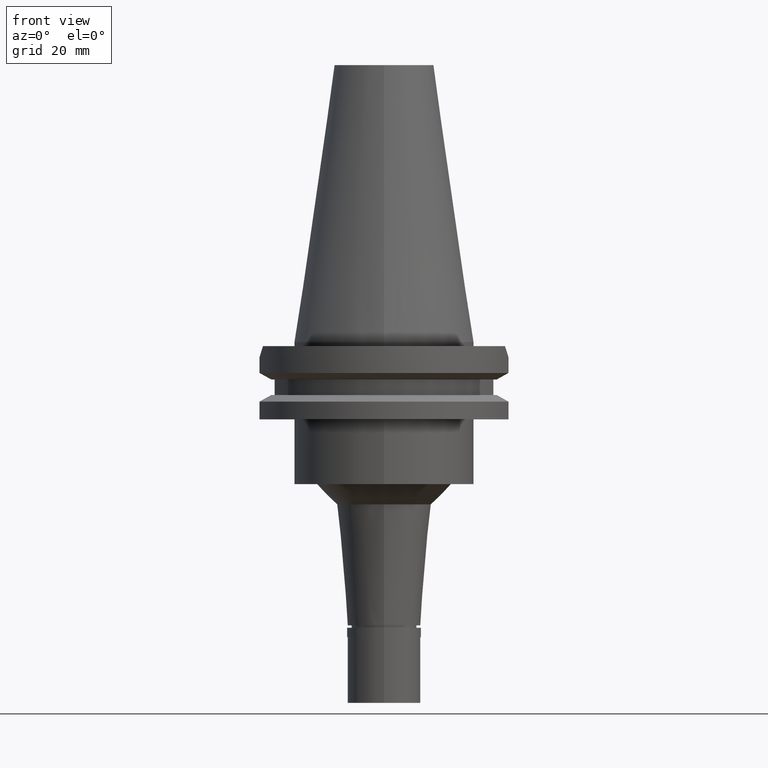
[diagram: clean part render]
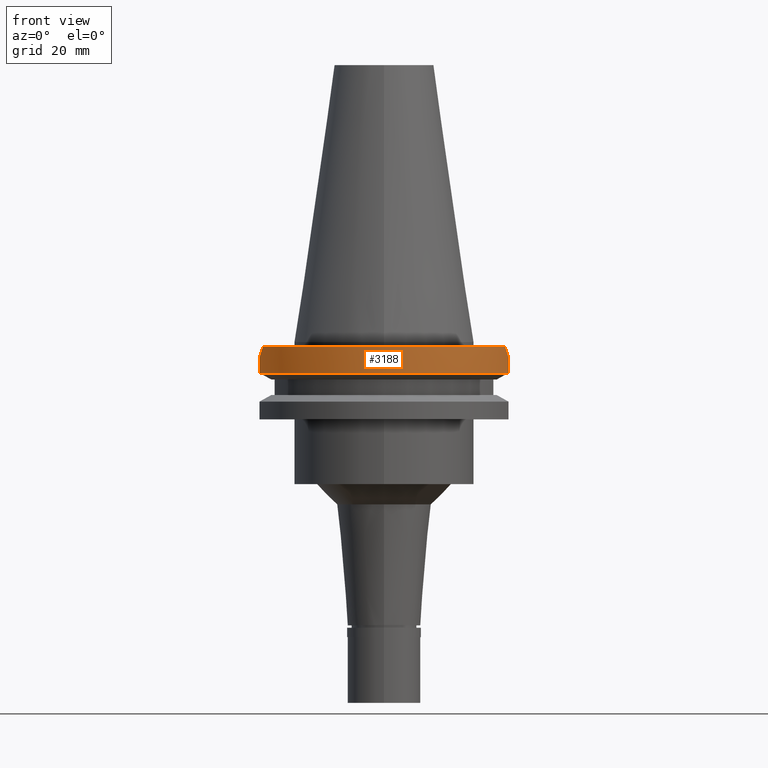
[diagram: same view with one face highlighted and labeled with its STEP entity id]
A machine part, front view. The second image highlights one B-rep face of the part: STEP entity #3188.
In plain terms, the highlighted cylindrical surface (partial cylindrical patch) has radius 31.75 mm, axis along (0, 0, -1).
Its self-contained STEP definition (entity closure, byte-faithful):
#17 = ORIENTED_EDGE ( 'NONE', *, *, #127, .F. ) ;
#127 = EDGE_CURVE ( 'NONE', #2139, #1068, #2095, .T. ) ;
#381 = CARTESIAN_POINT ( 'NONE',  ( -30.67550162588999640, -8.189999999999999503, -3.700000000000000178 ) ) ;
#609 = VERTEX_POINT ( 'NONE', #1354 ) ;
#640 = B_SPLINE_CURVE_WITH_KNOTS ( 'NONE', 3,
 ( #2742, #2758, #771, #1061 ),
 .UNSPECIFIED., .F., .F.,
 ( 4, 4 ),
 ( 0.0000000000000000000, 1.000000000000000000 ),
 .UNSPECIFIED. ) ;
#722 = CARTESIAN_POINT ( 'NONE',  ( -30.43183015827552040, -9.102667216255303728, -2.787332783744696840 ) ) ;
#724 = EDGE_CURVE ( 'NONE', #2062, #2293, #1522, .T. ) ;
#771 = CARTESIAN_POINT ( 'NONE',  ( 30.43183015827552396, -9.102667216255303728, -2.787332783744696840 ) ) ;
#824 = VECTOR ( 'NONE', #2604, 1000.000000000000114 ) ;
#835 = CARTESIAN_POINT ( 'NONE',  ( -29.82399034335000110, -10.89000000000000057, -1.000000000001000089 ) ) ;
#875 = EDGE_CURVE ( 'NONE', #2139, #2293, #1232, .T. ) ;
#979 = CIRCLE ( 'NONE', #1445, 31.75000000000000000 ) ;
#980 = ORIENTED_EDGE ( 'NONE', *, *, #724, .F. ) ;
#1061 = CARTESIAN_POINT ( 'NONE',  ( 30.67550162588999640, -8.189999999999999503, -3.700000000000000178 ) ) ;
#1068 = VERTEX_POINT ( 'NONE', #381 ) ;
#1081 = AXIS2_PLACEMENT_3D ( 'NONE', #1931, #2469, #1966 ) ;
#1149 = CARTESIAN_POINT ( 'NONE',  ( -30.67550165946999741, -8.189999874236001176, -7.601334354806000171 ) ) ;
#1154 = EDGE_LOOP ( 'NONE', ( #2154, #2904, #2603, #17, #2554, #980 ) ) ;
#1232 = CIRCLE ( 'NONE', #1081, 31.74999999999998579 ) ;
#1354 = CARTESIAN_POINT ( 'NONE',  ( 29.82399034335000110, -10.89000000000000057, -1.000000000001000089 ) ) ;
#1399 = CARTESIAN_POINT ( 'NONE',  ( -29.82399034335000110, -10.89000000000000057, -1.000000000001000089 ) ) ;
#1416 = CARTESIAN_POINT ( 'NONE',  ( -30.14799306409551960, -10.00266721625513888, -1.887332783744861908 ) ) ;
#1445 = AXIS2_PLACEMENT_3D ( 'NONE', #2273, #2521, #2494 ) ;
#1475 = EDGE_CURVE ( 'NONE', #609, #2871, #979, .T. ) ;
#1522 = LINE ( 'NONE', #2230, #2683 ) ;
#1827 = CARTESIAN_POINT ( 'NONE',  ( -30.67550165946999741, -8.189999874236001176, -7.601334354806000171 ) ) ;
#1931 = CARTESIAN_POINT ( 'NONE',  ( 0.0000000000000000000, 1.121722380078999823E-14, -7.601333230925999551 ) ) ;
#1935 = CARTESIAN_POINT ( 'NONE',  ( -30.67550162588999640, -8.189999999999999503, -3.700000000000000178 ) ) ;
#1966 = DIRECTION ( 'NONE',  ( -0.9661575315241073270, -0.2579527559055020958, 0.0000000000000000000 ) ) ;
#2062 = VERTEX_POINT ( 'NONE', #2566 ) ;
#2095 = LINE ( 'NONE', #1149, #824 ) ;
#2139 = VERTEX_POINT ( 'NONE', #1827 ) ;
#2154 = ORIENTED_EDGE ( 'NONE', *, *, #2451, .F. ) ;
#2162 = CARTESIAN_POINT ( 'NONE',  ( 0.0000000000000000000, 2.153878174169999899E-14, 75.87749999999999773 ) ) ;
#2230 = CARTESIAN_POINT ( 'NONE',  ( 30.67550162588999640, -8.189999999999999503, -3.700000000000000178 ) ) ;
#2260 = EDGE_CURVE ( 'NONE', #1068, #2871, #2448, .T. ) ;
#2273 = CARTESIAN_POINT ( 'NONE',  ( 0.0000000000000000000, 2.153878174169999899E-14, -1.000000000000000000 ) ) ;
#2293 = VERTEX_POINT ( 'NONE', #2665 ) ;
#2412 = FACE_OUTER_BOUND ( 'NONE', #1154, .T. ) ;
#2448 = B_SPLINE_CURVE_WITH_KNOTS ( 'NONE', 3,
 ( #1935, #722, #1416, #1399 ),
 .UNSPECIFIED., .F., .F.,
 ( 4, 4 ),
 ( 0.0000000000000000000, 1.000000000000000000 ),
 .UNSPECIFIED. ) ;
#2451 = EDGE_CURVE ( 'NONE', #609, #2062, #640, .T. ) ;
#2461 = DIRECTION ( 'NONE',  ( 0.0000000000000000000, -1.000000000000000000, 0.0000000000000000000 ) ) ;
#2469 = DIRECTION ( 'NONE',  ( 0.0000000000000000000, 0.0000000000000000000, 1.000000000000000000 ) ) ;
#2494 = DIRECTION ( 'NONE',  ( 0.0000000000000000000, -1.000000000000000000, 0.0000000000000000000 ) ) ;
#2521 = DIRECTION ( 'NONE',  ( 0.0000000000000000000, 0.0000000000000000000, -1.000000000000000000 ) ) ;
#2554 = ORIENTED_EDGE ( 'NONE', *, *, #875, .T. ) ;
#2566 = CARTESIAN_POINT ( 'NONE',  ( 30.67550162588999640, -8.189999999999999503, -3.700000000000000178 ) ) ;
#2603 = ORIENTED_EDGE ( 'NONE', *, *, #2260, .F. ) ;
#2604 = DIRECTION ( 'NONE',  ( 8.606817264245996725E-09, -3.223623804117998378E-08, 0.9999999999999994449 ) ) ;
#2665 = CARTESIAN_POINT ( 'NONE',  ( 30.67550146397999811, -8.190000606435001274, -7.601327811470000029 ) ) ;
#2681 = DIRECTION ( 'NONE',  ( -4.150140291050944870E-08, -1.554432095459979819E-07, -0.9999999999999870104 ) ) ;
#2683 = VECTOR ( 'NONE', #2681, 1000.000000000000227 ) ;
#2742 = CARTESIAN_POINT ( 'NONE',  ( 29.82399034335000110, -10.89000000000000057, -1.000000000001000089 ) ) ;
#2758 = CARTESIAN_POINT ( 'NONE',  ( 30.14799306409552671, -10.00266721625513888, -1.887332783744861908 ) ) ;
#2787 = AXIS2_PLACEMENT_3D ( 'NONE', #2162, #3145, #2461 ) ;
#2871 = VERTEX_POINT ( 'NONE', #835 ) ;
#2904 = ORIENTED_EDGE ( 'NONE', *, *, #1475, .T. ) ;
#2914 = CYLINDRICAL_SURFACE ( 'NONE', #2787, 31.75000000000000000 ) ;
#3145 = DIRECTION ( 'NONE',  ( 0.0000000000000000000, 0.0000000000000000000, -1.000000000000000000 ) ) ;
#3188 = ADVANCED_FACE ( 'NONE', ( #2412 ), #2914, .T. ) ;